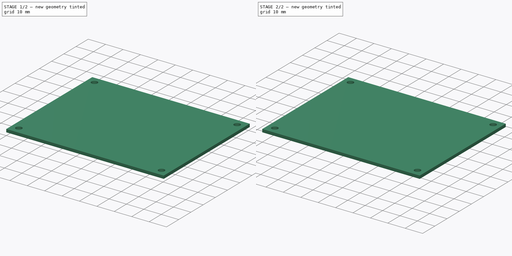
[diagram: build sequence overview — one tinted view per stage of 2, left to right]
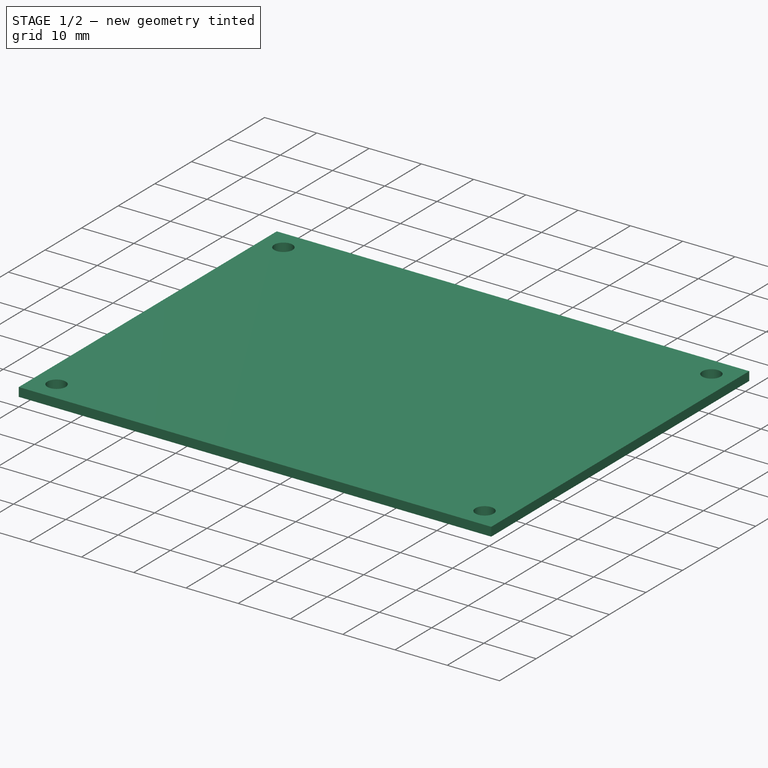
[diagram: stage 1 of 2 — iso view after this stage's code; geometry added in this stage tinted green]
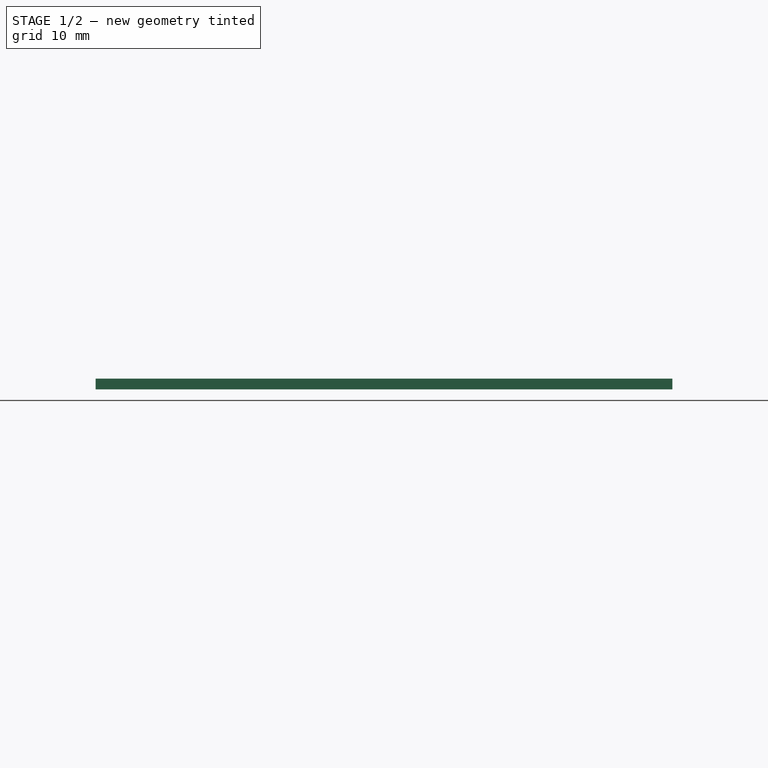
[diagram: stage 1 of 2 — front view after this stage's code; geometry added in this stage tinted green]
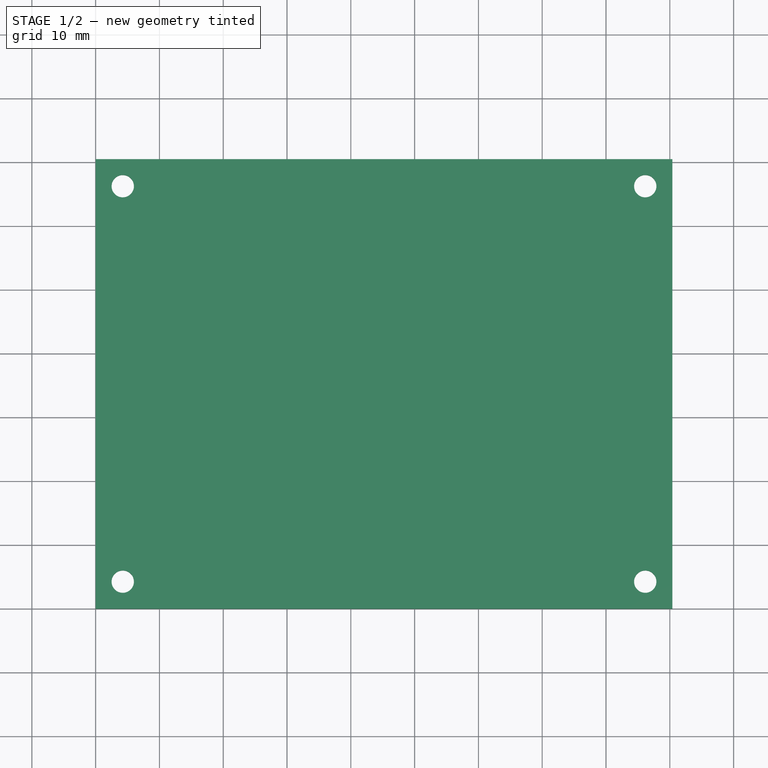
[diagram: stage 1 of 2 — top view after this stage's code; geometry added in this stage tinted green]
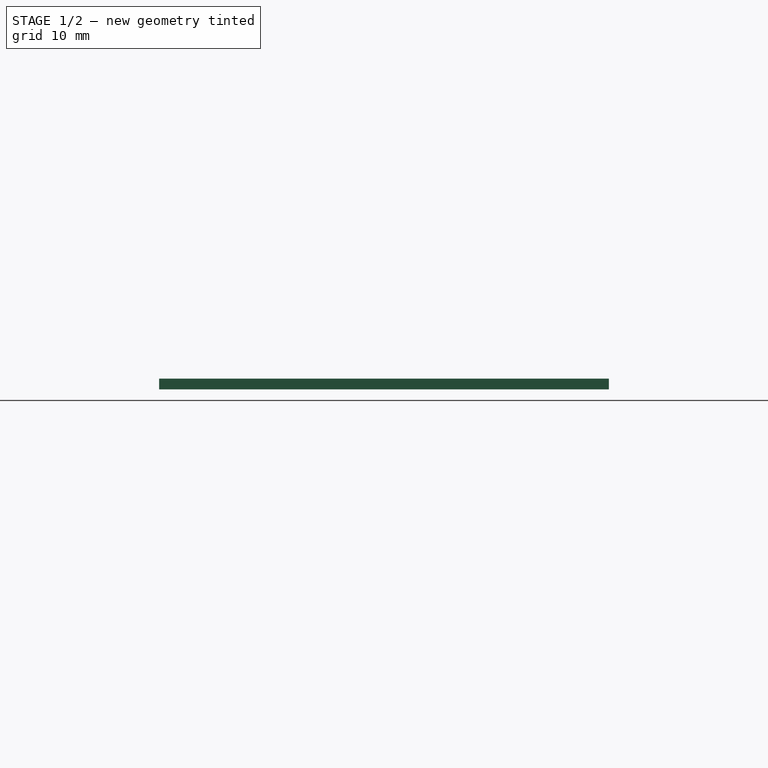
[diagram: stage 1 of 2 — right view after this stage's code; geometry added in this stage tinted green]
FCSTD DOCUMENT  (FreeCAD 0.19R24267 (Git))
Label: ks0288cncshield_1b
License: All rights reserved
LicenseURL: http://en.wikipedia.org/wiki/All_rights_reserved
objects: Sketcher::SketchObject×1, PartDesign::Pad×1, PartDesign::Body×1, Part::Compound×1, Part::Feature×1
note: 6 computed .brp shape members not serialized (recipe doc carries the construction recipe); baked Part::Feature solids carry a one-line shape summary decoded from their .brp

FEATURE [Sketcher::SketchObject] Sketch
  FullyConstrained = false
  MapMode = 5
  Support = -> [XY_Plane]
  sketch-geometry (8):
    g0: LineSegment StartX=0 StartY=70.5 StartZ=0 EndX=90.4 EndY=70.5 EndZ=0
    g1: LineSegment StartX=90.4 StartY=70.5 StartZ=0 EndX=90.4 EndY=0 EndZ=0
    g2: LineSegment StartX=90.4 StartY=0 StartZ=0 EndX=0 EndY=0 EndZ=0
    g3: LineSegment StartX=0 StartY=0 StartZ=0 EndX=0 EndY=70.5 EndZ=0
    g4: Circle CenterX=4.25 CenterY=66.25 CenterZ=0 NormalX=0 NormalY=0 NormalZ=1 AngleXU=0 Radius=1.75
    g5: Circle CenterX=86.15 CenterY=66.25 CenterZ=0 NormalX=0 NormalY=0 NormalZ=1 AngleXU=0 Radius=1.75
    g6: Circle CenterX=4.25 CenterY=4.25 CenterZ=0 NormalX=0 NormalY=0 NormalZ=1 AngleXU=0 Radius=1.75
    g7: Circle CenterX=86.15 CenterY=4.25 CenterZ=0 NormalX=0 NormalY=0 NormalZ=1 AngleXU=0 Radius=1.75
  constraints (23):
    c: Coincident(g0,g1)
    c: Coincident(g1,g2)
    c: Coincident(g2,g3)
    c: Coincident(g3,g0)
    c: Horizontal(g0)
    c: Horizontal(g2)
    c: Vertical(g1)
    c: Vertical(g3)
    c: Coincident(g2,g-1)
    c: DistanceX(g0,g0) = 90.4
    c: DistanceY(g3,g3) = 70.5
    c: DistanceX(g2,g6) = 4.25
    c: DistanceY(g2,g6) = 4.25
    c: DistanceX(g7,g1) = 4.25
    c: DistanceY(g6,g7) = 0
    c: DistanceX(g6,g4) = 0
    c: DistanceX(g5,g7) = 0
    c: DistanceY(g5,g0) = 4.25
    c: DistanceY(g4,g5) = 0
    c: Radius(g4) = 1.75
    c: Equal(g4,g5)
    c: Equal(g4,g7)
    c: Equal(g4,g6)
FEATURE [PartDesign::Pad] Pad
  AllowMultiFace = false
  Direction = (1,1,1)
  Length = 1.7
  Length2 = 100
  Profile = -> Sketch
  Type = 0
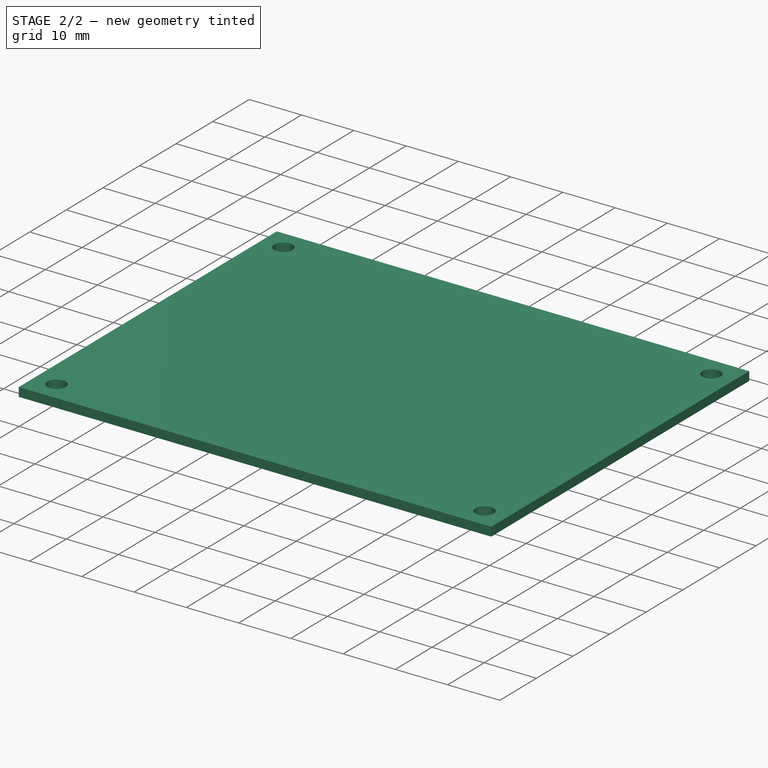
[diagram: stage 2 of 2 — iso view after this stage's code; geometry added in this stage tinted green]
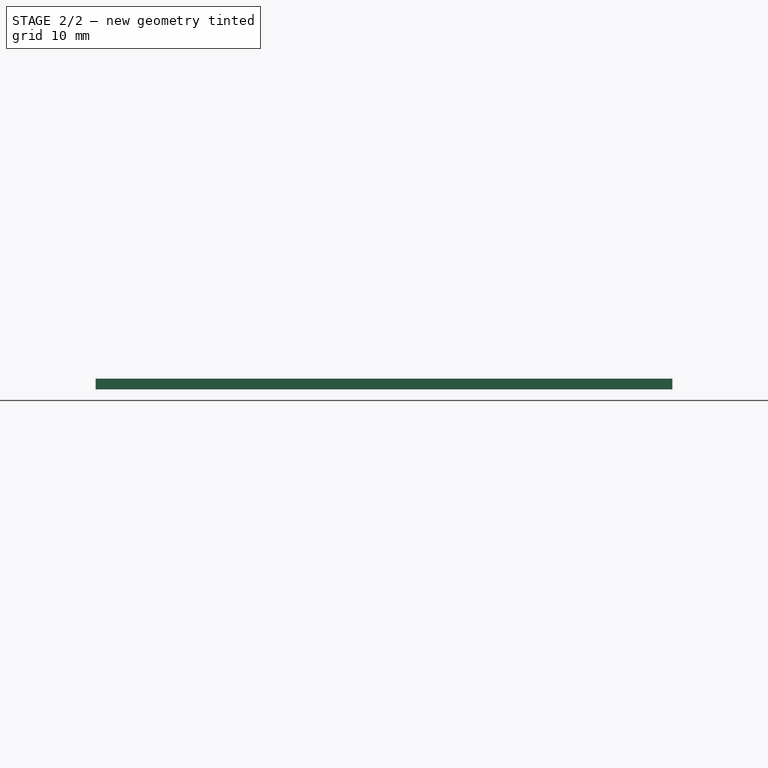
[diagram: stage 2 of 2 — front view after this stage's code; geometry added in this stage tinted green]
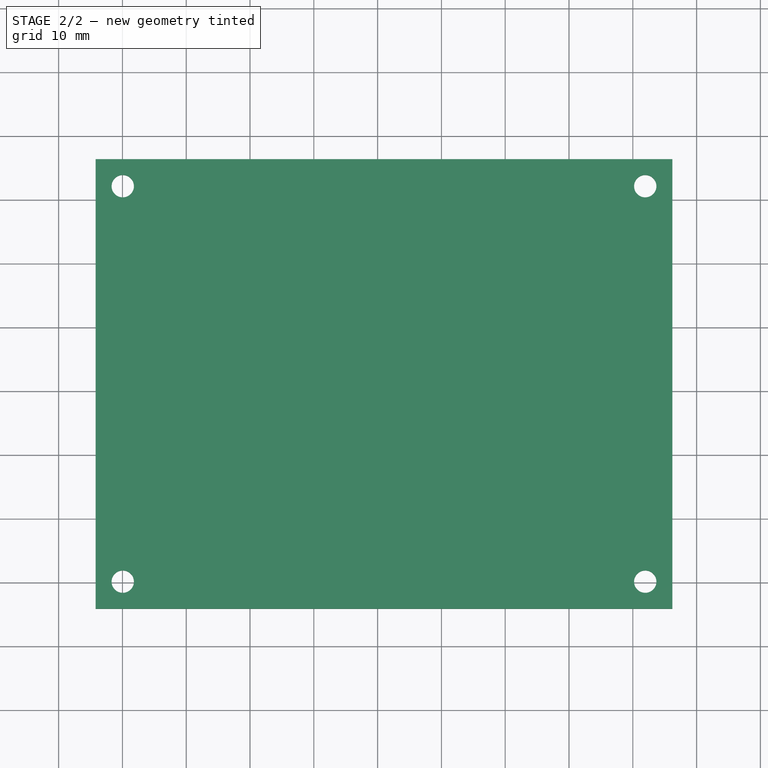
[diagram: stage 2 of 2 — top view after this stage's code; geometry added in this stage tinted green]
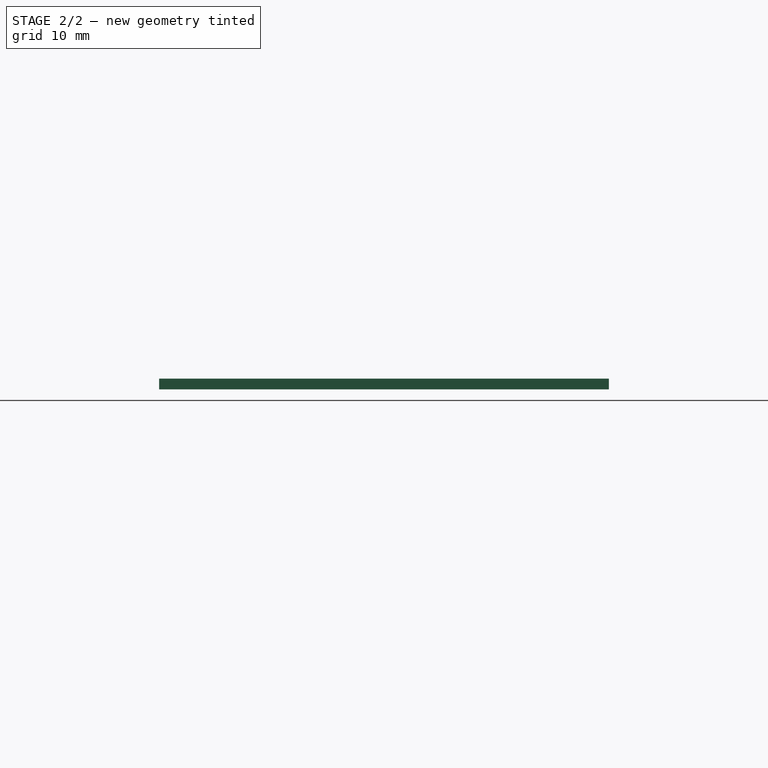
[diagram: stage 2 of 2 — right view after this stage's code; geometry added in this stage tinted green]
FEATURE [PartDesign::Body] Body
  Group = -> [Sketch,Pad]
  Origin = -> Origin
  Placement = pos=(5.8,25.9,10) rot=(0,0,1;0rad)
  Tip = -> Pad
FEATURE [Part::Compound] Compound
  Links = -> [Body]
FEATURE [Part::Feature] Part__Feature001  label="tqfp32"
  Placement = pos=(75,55,12) rot=(0,0,1;0rad)
  shape: bbox 9 x 9 x 1.44 mm, 469 faces, 33 solids (baked)
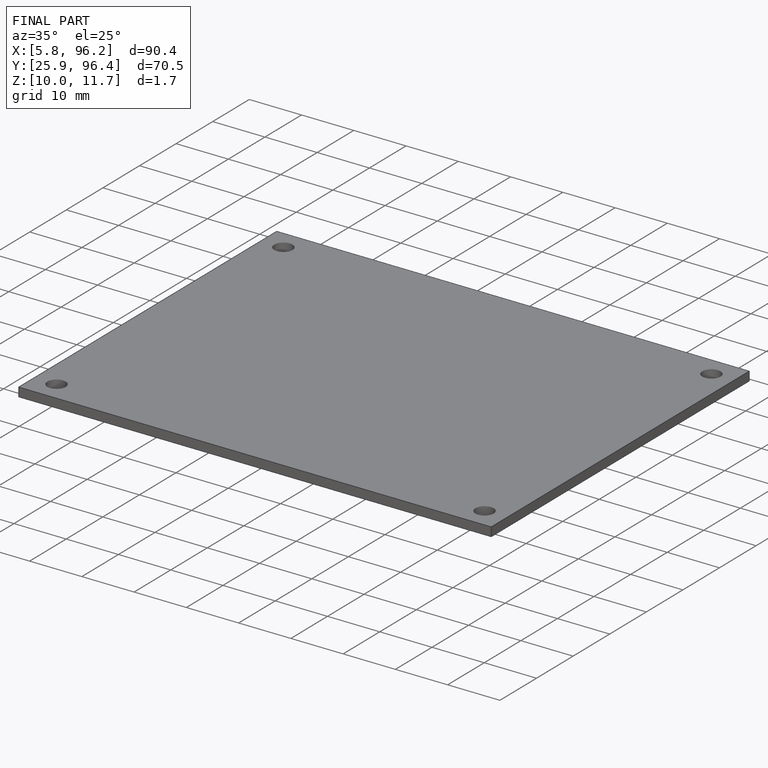
[diagram: finished part — iso view with bounding-box wireframe]
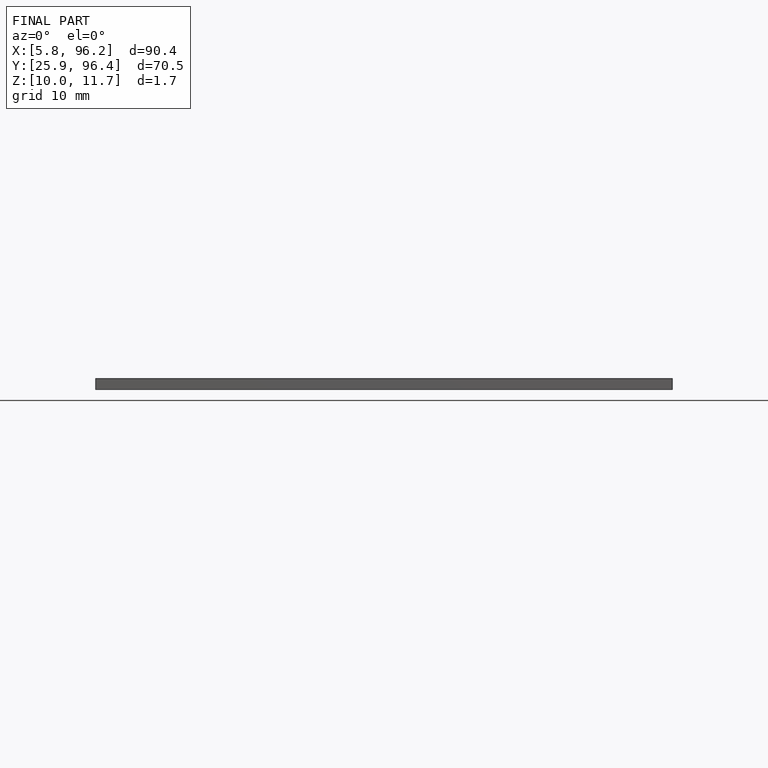
[diagram: finished part — front view with bounding-box wireframe]
